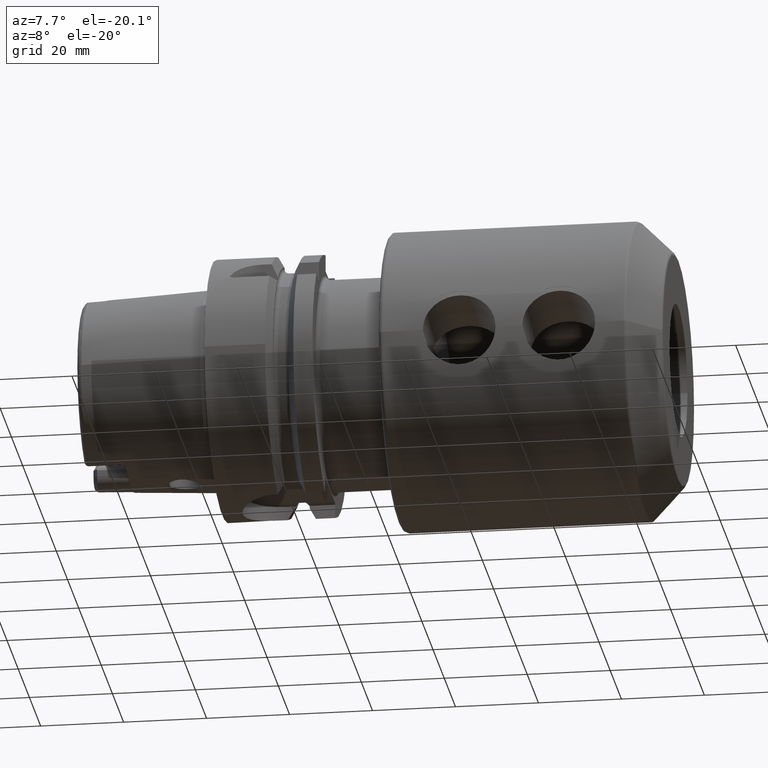
[diagram: clean part render]
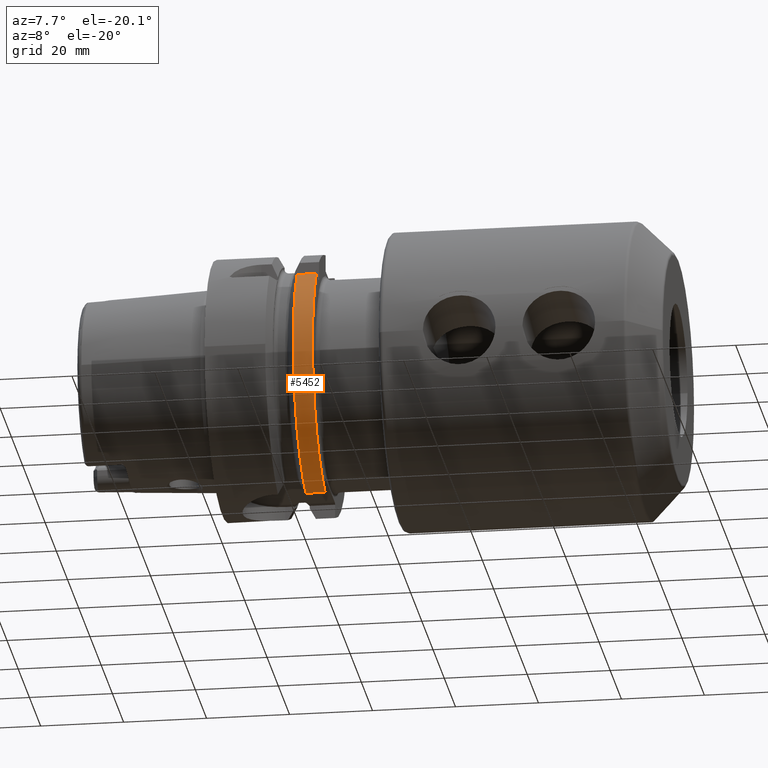
[diagram: same view with one face highlighted and labeled with its STEP entity id]
A machine part, auxiliary view. The second image highlights one B-rep face of the part: STEP entity #5452.
In plain terms, the highlighted cylindrical surface (partial cylindrical patch) has radius 31.5 mm, axis along (1, 0, 0).
Its self-contained STEP definition (entity closure, byte-faithful):
#1643=DIRECTION('',(1.E0,0.E0,0.E0));
#1644=VECTOR('',#1643,4.622500925241E0);
#1645=CARTESIAN_POINT('',(2.137749907476E1,-2.445868966237E1,1.985E1));
#1646=LINE('',#1645,#1644);
#1647=CARTESIAN_POINT('',(2.6E1,0.E0,0.E0));
#1648=DIRECTION('',(1.E0,0.E0,0.E0));
#1649=DIRECTION('',(0.E0,-7.764663384879E-1,6.301587301587E-1));
#1650=AXIS2_PLACEMENT_3D('',#1647,#1648,#1649);
#1813=CARTESIAN_POINT('',(2.137749907476E1,-2.445868966237E1,1.985E1));
#1815=CARTESIAN_POINT('',(2.137749907476E1,0.E0,0.E0));
#1816=DIRECTION('',(1.E0,0.E0,0.E0));
#1817=DIRECTION('',(0.E0,-7.764663384879E-1,6.301587301587E-1));
#1818=AXIS2_PLACEMENT_3D('',#1815,#1816,#1817);
#1825=CARTESIAN_POINT('',(2.137749907476E1,-9.0175E0,-3.018169467989E1));
#2039=DIRECTION('',(1.E0,0.E0,0.E0));
#2040=VECTOR('',#2039,4.622500925241E0);
#2041=CARTESIAN_POINT('',(2.137749907476E1,-9.0175E0,-3.018169467989E1));
#2042=LINE('',#2041,#2040);
#3438=VERTEX_POINT('',#1825);
#3457=VERTEX_POINT('',#1813);
#3490=CARTESIAN_POINT('',(2.6E1,-2.445868966237E1,1.985E1));
#3491=CARTESIAN_POINT('',(2.6E1,-9.0175E0,-3.018169467989E1));
#3492=VERTEX_POINT('',#3490);
#3493=VERTEX_POINT('',#3491);
#5438=CARTESIAN_POINT('',(-3.49E1,0.E0,0.E0));
#5439=DIRECTION('',(1.E0,0.E0,0.E0));
#5440=DIRECTION('',(0.E0,-1.E0,0.E0));
#5441=AXIS2_PLACEMENT_3D('',#5438,#5439,#5440);
#5442=CYLINDRICAL_SURFACE('',#5441,3.15E1);
#5444=ORIENTED_EDGE('',*,*,#5443,.F.);
#5446=ORIENTED_EDGE('',*,*,#5445,.F.);
#5448=ORIENTED_EDGE('',*,*,#5447,.T.);
#5449=ORIENTED_EDGE('',*,*,#5099,.T.);
#5450=EDGE_LOOP('',(#5444,#5446,#5448,#5449));
#5451=FACE_OUTER_BOUND('',#5450,.F.);
#5452=ADVANCED_FACE('',(#5451),#5442,.T.);
#1651=CIRCLE('',#1650,3.15E1);
#1819=CIRCLE('',#1818,3.15E1);
#5099=EDGE_CURVE('',#3492,#3493,#1651,.T.);
#5443=EDGE_CURVE('',#3438,#3493,#2042,.T.);
#5445=EDGE_CURVE('',#3457,#3438,#1819,.T.);
#5447=EDGE_CURVE('',#3457,#3492,#1646,.T.);